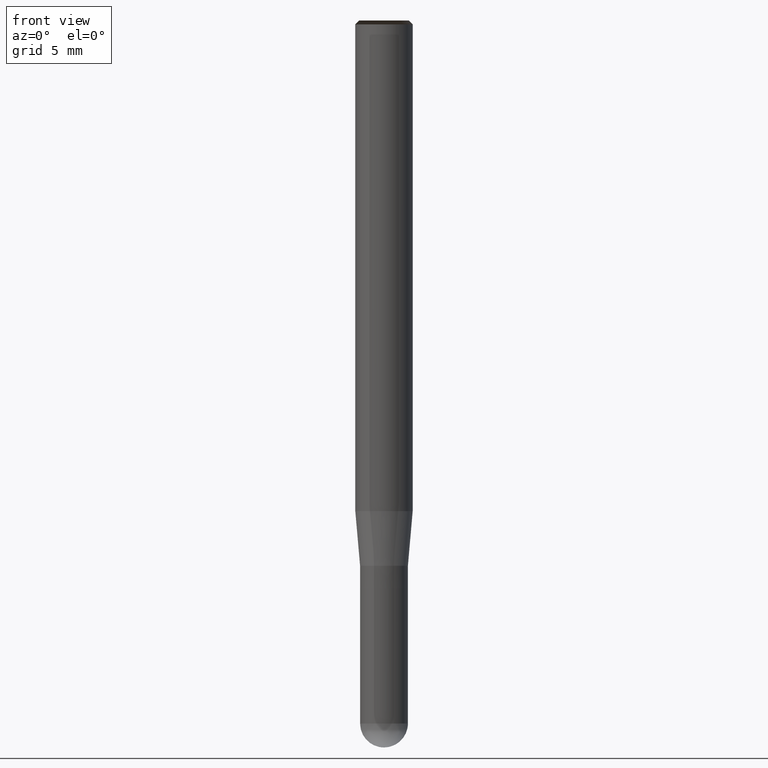
[diagram: clean part render]
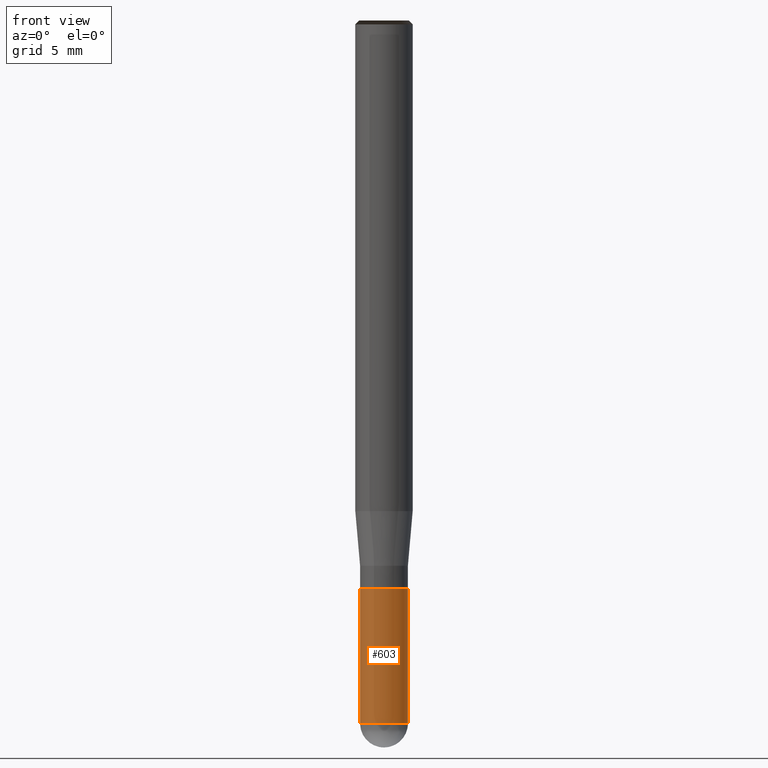
[diagram: same view with one face highlighted and labeled with its STEP entity id]
A machine part, front view. The second image highlights one B-rep face of the part: STEP entity #603.
In plain terms, the highlighted face is a freeform B-spline surface patch.
Its self-contained STEP definition (entity closure, byte-faithful):
#450=CARTESIAN_POINT('',(1.25,0.0,-11.25));
#454=CARTESIAN_POINT('',(-1.25,0.0,-11.25));
#455=CARTESIAN_POINT('',(1.25,0.0,-4.1875));
#459=CARTESIAN_POINT('',(-1.25,0.0,-4.1875));
#464=CARTESIAN_POINT('',(-1.25,-1.25,-11.25));
#465=CARTESIAN_POINT('',(0.0,-1.25,-11.25));
#466=CARTESIAN_POINT('',(1.25,-1.25,-11.25));
#467=CARTESIAN_POINT('',(-1.25,-1.25,-4.1875));
#468=CARTESIAN_POINT('',(0.0,-1.25,-4.1875));
#469=CARTESIAN_POINT('',(1.25,-1.25,-4.1875));
#584=(
BOUNDED_SURFACE()
B_SPLINE_SURFACE(1,2,(
(#454,#464,#465,#466,#450),
(#459,#467,#468,#469,#455)
), .UNSPECIFIED.,.F.,.F.,.F.)
B_SPLINE_SURFACE_WITH_KNOTS((2,2),(3,2,3),(
0.0,1.0),(
0.0,0.5,1.0), .UNSPECIFIED.)
GEOMETRIC_REPRESENTATION_ITEM()
RATIONAL_B_SPLINE_SURFACE(((1.0,0.707106781187,1.0,0.707106781187,1.0),
(1.0,0.707106781187,1.0,0.707106781187,1.0)
))
REPRESENTATION_ITEM('')
SURFACE()
);
#585=(
BOUNDED_CURVE()
B_SPLINE_CURVE(2,(#450,#466,#465,#464,#454),.UNSPECIFIED.,.F.,.F.)
B_SPLINE_CURVE_WITH_KNOTS((3,2,3),
(0.0,0.5,1.0),.UNSPECIFIED.)
CURVE()
GEOMETRIC_REPRESENTATION_ITEM()
RATIONAL_B_SPLINE_CURVE((1.0,0.707106781187,1.0,0.707106781187,1.0))
REPRESENTATION_ITEM('')
);
#586=(
BOUNDED_CURVE()
B_SPLINE_CURVE(1,(#454,#459),.UNSPECIFIED.,.F.,.F.)
B_SPLINE_CURVE_WITH_KNOTS((2,2),
(0.0,1.0),.UNSPECIFIED.)
CURVE()
GEOMETRIC_REPRESENTATION_ITEM()
RATIONAL_B_SPLINE_CURVE((1.0,1.0))
REPRESENTATION_ITEM('')
);
#587=(
BOUNDED_CURVE()
B_SPLINE_CURVE(2,(#459,#467,#468,#469,#455),.UNSPECIFIED.,.F.,.F.)
B_SPLINE_CURVE_WITH_KNOTS((3,2,3),
(0.0,0.5,1.0),.UNSPECIFIED.)
CURVE()
GEOMETRIC_REPRESENTATION_ITEM()
RATIONAL_B_SPLINE_CURVE((1.0,0.707106781187,1.0,0.707106781187,1.0))
REPRESENTATION_ITEM('')
);
#588=(
BOUNDED_CURVE()
B_SPLINE_CURVE(1,(#455,#450),.UNSPECIFIED.,.F.,.F.)
B_SPLINE_CURVE_WITH_KNOTS((2,2),
(0.0,1.0),.UNSPECIFIED.)
CURVE()
GEOMETRIC_REPRESENTATION_ITEM()
RATIONAL_B_SPLINE_CURVE((1.0,1.0))
REPRESENTATION_ITEM('')
);
#589=VERTEX_POINT('',#450);
#590=VERTEX_POINT('',#454);
#591=VERTEX_POINT('',#455);
#592=VERTEX_POINT('',#459);
#593=EDGE_CURVE('',#589,#590,#585,.T.);
#594=EDGE_CURVE('',#590,#592,#586,.T.);
#595=EDGE_CURVE('',#592,#591,#587,.T.);
#596=EDGE_CURVE('',#591,#589,#588,.T.);
#597=ORIENTED_EDGE('',*,*,#593,.T.);
#598=ORIENTED_EDGE('',*,*,#594,.T.);
#599=ORIENTED_EDGE('',*,*,#595,.T.);
#600=ORIENTED_EDGE('',*,*,#596,.T.);
#601=EDGE_LOOP('',(#597,#598,#599,#600));
#602=FACE_OUTER_BOUND('',#601,.T.);
#603=ADVANCED_FACE('',(#602),#584,.T.);